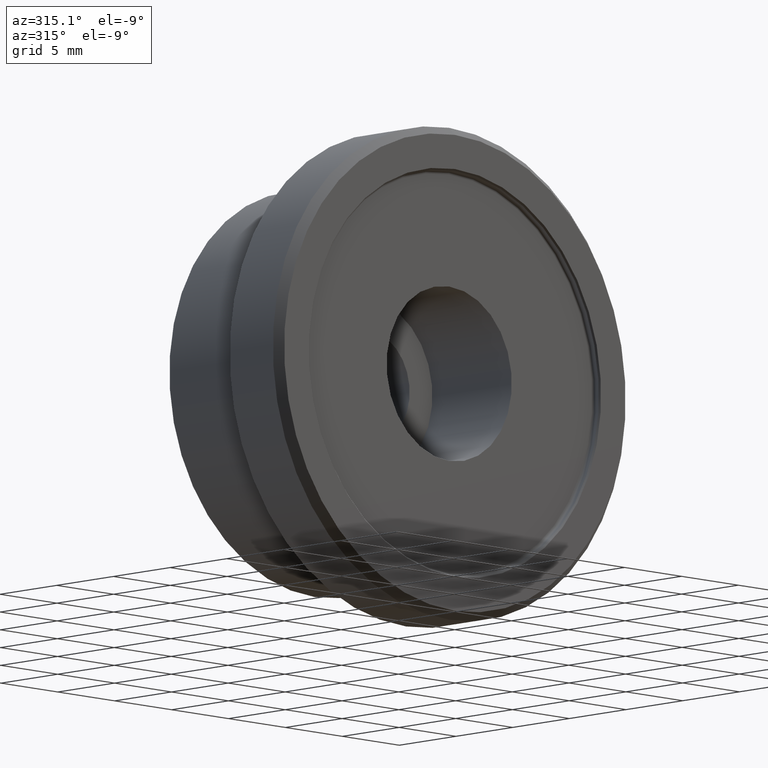
[diagram: clean part render]
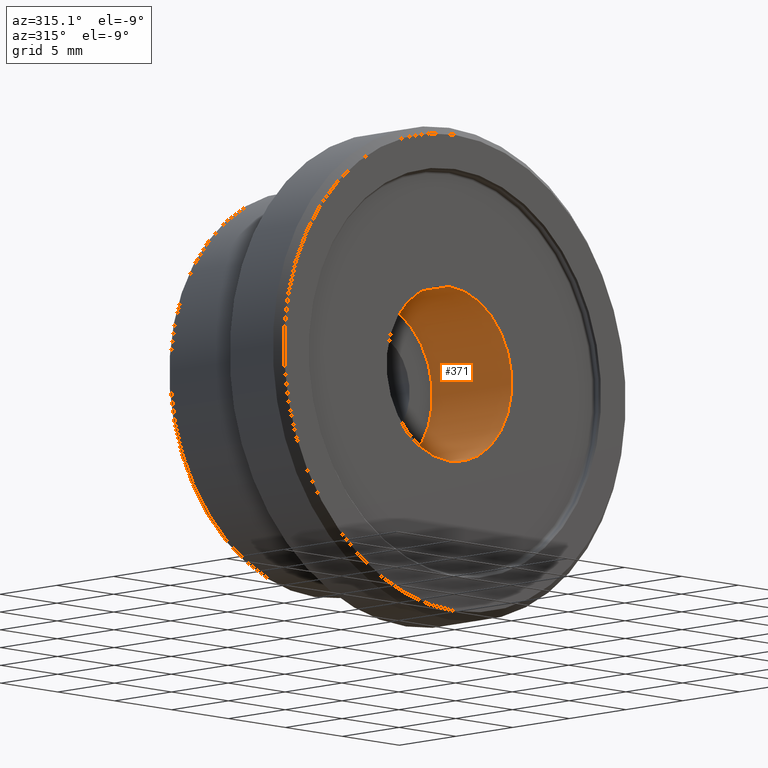
[diagram: same view with one face highlighted and labeled with its STEP entity id]
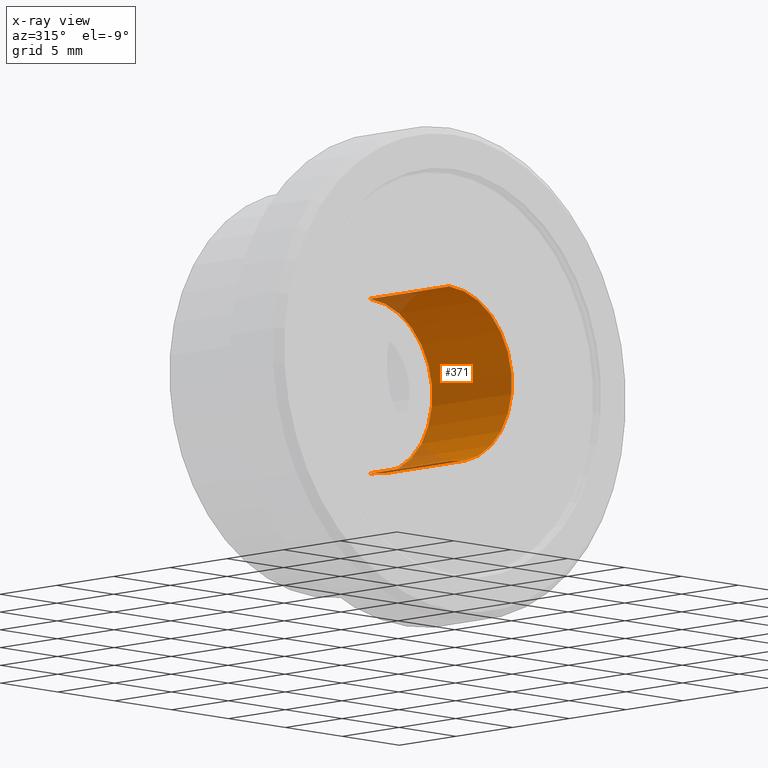
[diagram: x-ray of the same camera — body ghosted, the highlighted face saturated]
A machine part, auxiliary view. The second image highlights one B-rep face of the part: STEP entity #371.
The next image is the same camera in x-ray: the body ghosted, the highlighted face saturated — about 6% of this face is hidden behind the body in this view.
In plain terms, the highlighted cylindrical surface (partial cylindrical patch) has radius 5.5 mm, axis along (-0, 1, -0).
Its self-contained STEP definition (entity closure, byte-faithful):
#17 = CARTESIAN_POINT ( 'NONE',  ( 0.0000000000000000000, 7.500000000000000000, 0.0000000000000000000 ) ) ;
#22 = LINE ( 'NONE', #312, #859 ) ;
#26 = DIRECTION ( 'NONE',  ( -0.0000000000000000000, 1.000000000000000000, -0.0000000000000000000 ) ) ;
#83 = FACE_OUTER_BOUND ( 'NONE', #467, .T. ) ;
#119 = ORIENTED_EDGE ( 'NONE', *, *, #719, .T. ) ;
#127 = CYLINDRICAL_SURFACE ( 'NONE', #793, 5.500000000000001800 ) ;
#137 = CARTESIAN_POINT ( 'NONE',  ( 6.735557395310444000E-016, 12.50000000000000000, -5.500000000000001800 ) ) ;
#149 = DIRECTION ( 'NONE',  ( 0.0000000000000000000, 0.0000000000000000000, 1.000000000000000000 ) ) ;
#152 = EDGE_CURVE ( 'NONE', #808, #725, #22, .T. ) ;
#157 = CARTESIAN_POINT ( 'NONE',  ( 0.0000000000000000000, 0.5000000000000004400, 0.0000000000000000000 ) ) ;
#163 = DIRECTION ( 'NONE',  ( 0.0000000000000000000, 0.0000000000000000000, 1.000000000000000000 ) ) ;
#172 = CARTESIAN_POINT ( 'NONE',  ( 0.0000000000000000000, 0.5000000000000004400, 5.500000000000002700 ) ) ;
#251 = CIRCLE ( 'NONE', #418, 5.500000000000001800 ) ;
#283 = VECTOR ( 'NONE', #341, 1000.000000000000000 ) ;
#291 = ORIENTED_EDGE ( 'NONE', *, *, #557, .F. ) ;
#312 = CARTESIAN_POINT ( 'NONE',  ( 0.0000000000000000000, 12.50000000000000000, 5.500000000000001800 ) ) ;
#341 = DIRECTION ( 'NONE',  ( -0.0000000000000000000, 1.000000000000000000, -0.0000000000000000000 ) ) ;
#371 = ADVANCED_FACE ( 'NONE', ( #83 ), #127, .F. ) ;
#418 = AXIS2_PLACEMENT_3D ( 'NONE', #17, #502, #163 ) ;
#467 = EDGE_LOOP ( 'NONE', ( #291, #778, #525, #119 ) ) ;
#502 = DIRECTION ( 'NONE',  ( -0.0000000000000000000, 1.000000000000000000, -0.0000000000000000000 ) ) ;
#504 = LINE ( 'NONE', #137, #283 ) ;
#505 = DIRECTION ( 'NONE',  ( -0.0000000000000000000, 1.000000000000000000, -0.0000000000000000000 ) ) ;
#525 = ORIENTED_EDGE ( 'NONE', *, *, #152, .T. ) ;
#549 = AXIS2_PLACEMENT_3D ( 'NONE', #157, #26, #149 ) ;
#557 = EDGE_CURVE ( 'NONE', #727, #801, #504, .T. ) ;
#559 = CARTESIAN_POINT ( 'NONE',  ( 6.735557395310446000E-016, 0.5000000000000004400, -5.500000000000002700 ) ) ;
#575 = CARTESIAN_POINT ( 'NONE',  ( 6.735557395310444000E-016, 7.500000000000000000, -5.500000000000001800 ) ) ;
#593 = DIRECTION ( 'NONE',  ( 0.0000000000000000000, 0.0000000000000000000, 1.000000000000000000 ) ) ;
#664 = DIRECTION ( 'NONE',  ( -0.0000000000000000000, 1.000000000000000000, -0.0000000000000000000 ) ) ;
#691 = CARTESIAN_POINT ( 'NONE',  ( 0.0000000000000000000, 7.500000000000000000, 5.500000000000001800 ) ) ;
#719 = EDGE_CURVE ( 'NONE', #725, #801, #251, .T. ) ;
#725 = VERTEX_POINT ( 'NONE', #691 ) ;
#727 = VERTEX_POINT ( 'NONE', #559 ) ;
#738 = EDGE_CURVE ( 'NONE', #808, #727, #747, .T. ) ;
#747 = CIRCLE ( 'NONE', #549, 5.500000000000002700 ) ;
#778 = ORIENTED_EDGE ( 'NONE', *, *, #738, .F. ) ;
#793 = AXIS2_PLACEMENT_3D ( 'NONE', #800, #664, #593 ) ;
#800 = CARTESIAN_POINT ( 'NONE',  ( 0.0000000000000000000, 12.50000000000000000, 0.0000000000000000000 ) ) ;
#801 = VERTEX_POINT ( 'NONE', #575 ) ;
#808 = VERTEX_POINT ( 'NONE', #172 ) ;
#859 = VECTOR ( 'NONE', #505, 1000.000000000000000 ) ;